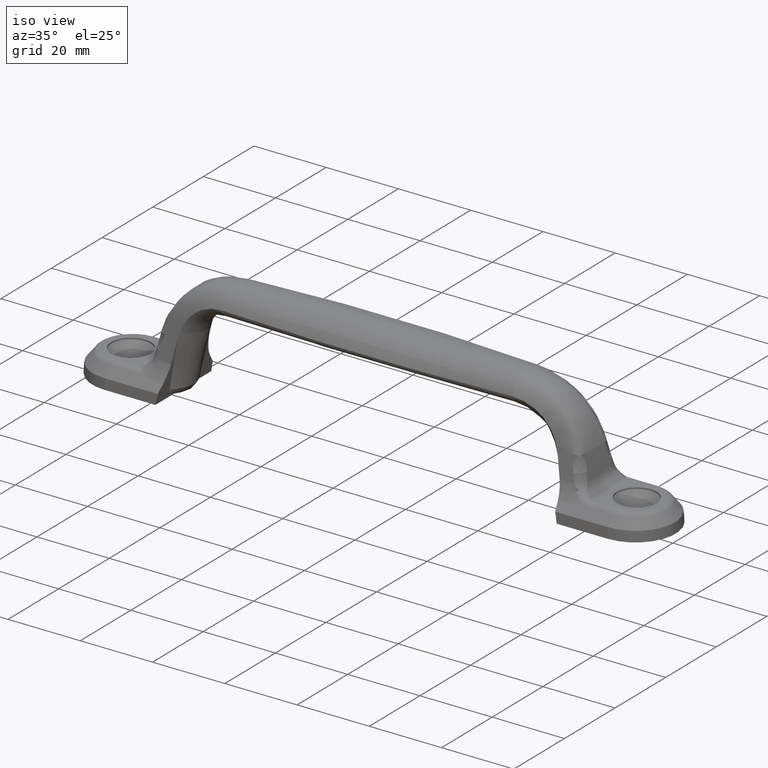
[diagram: clean part render]
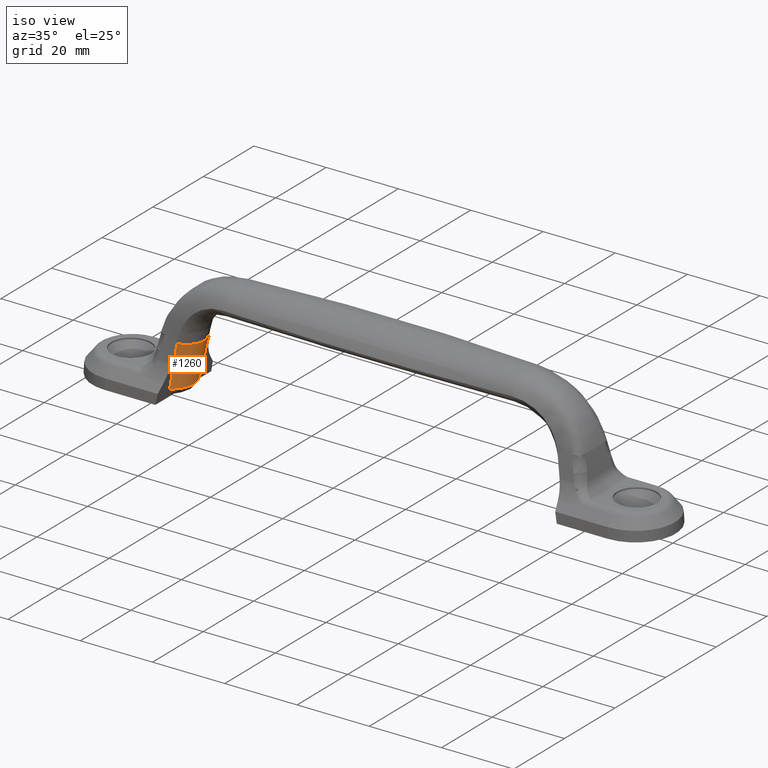
[diagram: same view with one face highlighted and labeled with its STEP entity id]
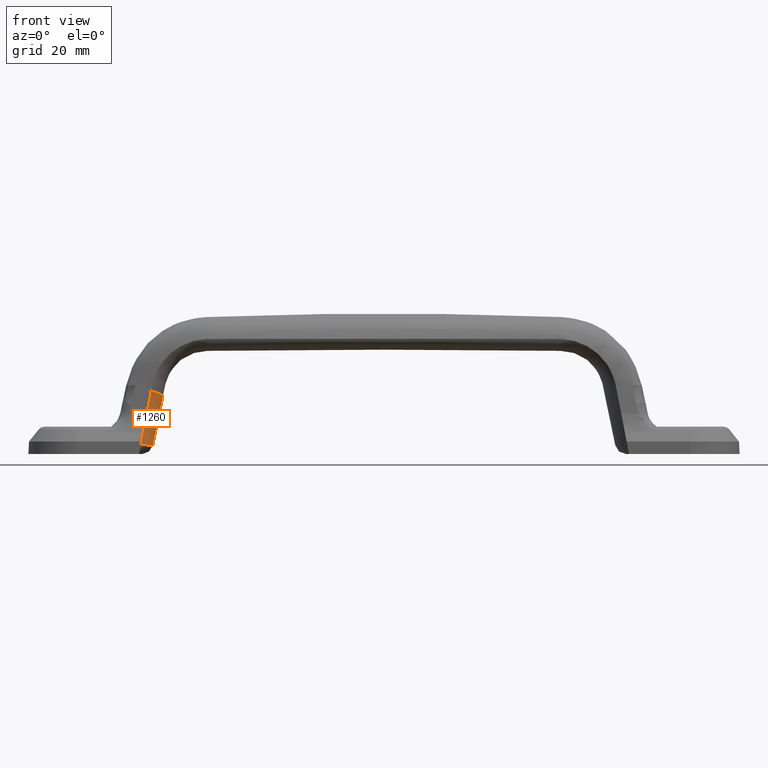
[diagram: same view with one face highlighted and labeled with its STEP entity id]
A machine part, iso view. The second image highlights one B-rep face of the part: STEP entity #1260.
A second angle (front view) of the same face is appended — the face is thin or edge-on in the first view.
In plain terms, the highlighted face is a freeform B-spline surface patch.
Its self-contained STEP definition (entity closure, byte-faithful):
#245=FACE_OUTER_BOUND('',#327,.T.);
#327=EDGE_LOOP('',(#1151,#1152,#1153,#1154));
#452=B_SPLINE_CURVE_WITH_KNOTS('',3,(#5876,#5877,#5878,#5879,#5880,#5881,
#5882,#5883,#5884,#5885,#5886,#5887,#5888,#5889,#5890,#5891,#5892,#5893,
#5894,#5895,#5896,#5897,#5898,#5899,#5900,#5901,#5902,#5903,#5904,#5905,
#5906),.UNSPECIFIED.,.F.,.F.,(4,3,3,3,3,3,3,3,3,3,4),(2.62266814435464E-6,
0.11945780196489,0.216644476213972,0.246491850341777,0.249999999999999,
0.50030384069927,0.75,0.75411499826633,0.880879413563301,0.96020206752481,
0.999995028709006),.UNSPECIFIED.);
#454=B_SPLINE_CURVE_WITH_KNOTS('',3,(#5921,#5922,#5923,#5924,#5925,#5926),
 .UNSPECIFIED.,.F.,.F.,(4,2,4),(-1.24160269460315,-0.620802671298082,-1.00000023384172E-6),
 .UNSPECIFIED.);
#458=B_SPLINE_CURVE_WITH_KNOTS('',3,(#6172,#6173,#6174,#6175,#6176,#6177),
 .UNSPECIFIED.,.F.,.F.,(4,2,4),(-1.12552007573961,-0.562893917201807,-1.29556356489617E-5),
 .UNSPECIFIED.);
#459=B_SPLINE_CURVE_WITH_KNOTS('',3,(#6230,#6231,#6232,#6233,#6234),
 .UNSPECIFIED.,.F.,.F.,(4,1,4),(0.,0.5,1.),.UNSPECIFIED.);
#583=VERTEX_POINT('',#5862);
#584=VERTEX_POINT('',#5875);
#585=VERTEX_POINT('',#5920);
#586=VERTEX_POINT('',#6165);
#771=EDGE_CURVE('',#583,#584,#452,.T.);
#773=EDGE_CURVE('',#584,#585,#454,.T.);
#777=EDGE_CURVE('',#586,#583,#458,.T.);
#778=EDGE_CURVE('',#585,#586,#459,.T.);
#1151=ORIENTED_EDGE('',*,*,#773,.F.);
#1152=ORIENTED_EDGE('',*,*,#771,.F.);
#1153=ORIENTED_EDGE('',*,*,#777,.F.);
#1154=ORIENTED_EDGE('',*,*,#778,.F.);
#1188=B_SPLINE_SURFACE_WITH_KNOTS('',3,3,((#6178,#6179,#6180,#6181),(#6182,
#6183,#6184,#6185),(#6186,#6187,#6188,#6189),(#6190,#6191,#6192,#6193),
(#6194,#6195,#6196,#6197),(#6198,#6199,#6200,#6201),(#6202,#6203,#6204,
#6205),(#6206,#6207,#6208,#6209),(#6210,#6211,#6212,#6213),(#6214,#6215,
#6216,#6217),(#6218,#6219,#6220,#6221),(#6222,#6223,#6224,#6225),(#6226,
#6227,#6228,#6229)),.UNSPECIFIED.,.F.,.F.,.F.,(4,3,3,3,4),(4,4),(0.,0.25,
0.5,0.75,1.),(0.,1.),.UNSPECIFIED.);
#1260=ADVANCED_FACE('',(#245),#1188,.F.);
#5862=CARTESIAN_POINT('',(-55.1706137989036,65.3250478548609,2.02591888439117));
#5875=CARTESIAN_POINT('',(-55.1516915961365,54.109321985225,2.12351919769397));
#5876=CARTESIAN_POINT('Ctrl Pts',(-55.1706137989036,65.3250478548609,2.02591888439117));
#5877=CARTESIAN_POINT('Ctrl Pts',(-54.7652833631099,65.0126346804492,2.03048962312275));
#5878=CARTESIAN_POINT('Ctrl Pts',(-54.3955636368107,64.6518602681521,2.00872535366747));
#5879=CARTESIAN_POINT('Ctrl Pts',(-54.0678916785993,64.2584942245244,2.00349298984566));
#5880=CARTESIAN_POINT('Ctrl Pts',(-53.801303423065,63.9384583937822,1.99923602885581));
#5881=CARTESIAN_POINT('Ctrl Pts',(-53.5602322523293,63.5907796368042,1.99551834359964));
#5882=CARTESIAN_POINT('Ctrl Pts',(-53.3530602917506,63.2274449261172,1.99201355153377));
#5883=CARTESIAN_POINT('Ctrl Pts',(-53.2894349124076,63.1158598026702,1.99093718133344));
#5884=CARTESIAN_POINT('Ctrl Pts',(-53.2288481853877,63.0024759846825,1.98975161972222));
#5885=CARTESIAN_POINT('Ctrl Pts',(-53.1714894433164,62.8877022994927,1.98901517914228));
#5886=CARTESIAN_POINT('Ctrl Pts',(-53.1647477095032,62.8742122262036,1.98892862064779));
#5887=CARTESIAN_POINT('Ctrl Pts',(-53.1580470272484,62.8606976101204,1.98884821982187));
#5888=CARTESIAN_POINT('Ctrl Pts',(-53.1513874009337,62.8471588954926,1.98877486654075));
#5889=CARTESIAN_POINT('Ctrl Pts',(-52.6762280700632,61.8811817851635,1.98354116507905));
#5890=CARTESIAN_POINT('Ctrl Pts',(-52.420355438966,60.7998026393215,1.98543563196814));
#5891=CARTESIAN_POINT('Ctrl Pts',(-52.4199807184595,59.7158847120065,1.99340645236118));
#5892=CARTESIAN_POINT('Ctrl Pts',(-52.4196069076901,58.6345982935015,2.001357921396));
#5893=CARTESIAN_POINT('Ctrl Pts',(-52.6573837182873,57.5799408807866,2.01615202390885));
#5894=CARTESIAN_POINT('Ctrl Pts',(-53.1308625080782,56.6040043663625,2.03844961343741));
#5895=CARTESIAN_POINT('Ctrl Pts',(-53.1386654490789,56.5879209108695,2.03881707820944));
#5896=CARTESIAN_POINT('Ctrl Pts',(-53.1465328292402,56.5718574710515,2.03918774910852));
#5897=CARTESIAN_POINT('Ctrl Pts',(-53.1544646453721,56.555814358523,2.03956158066464));
#5898=CARTESIAN_POINT('Ctrl Pts',(-53.3988078914991,56.0615988941164,2.05107763378655));
#5899=CARTESIAN_POINT('Ctrl Pts',(-53.7023228355776,55.5968857153136,2.064749032245));
#5900=CARTESIAN_POINT('Ctrl Pts',(-54.0502091300361,55.1772018086351,2.07928169157079));
#5901=CARTESIAN_POINT('Ctrl Pts',(-54.2678984877998,54.9145851963572,2.08837548263306));
#5902=CARTESIAN_POINT('Ctrl Pts',(-54.5054059646247,54.6658430041826,2.10720920534373));
#5903=CARTESIAN_POINT('Ctrl Pts',(-54.7584611957304,54.4374746856002,2.11776483237172));
#5904=CARTESIAN_POINT('Ctrl Pts',(-54.8854087508858,54.322911554096,2.12306016271711));
#5905=CARTESIAN_POINT('Ctrl Pts',(-55.0166845601767,54.2135037245499,2.1242018680104));
#5906=CARTESIAN_POINT('Ctrl Pts',(-55.1516915961365,54.109321985225,2.12351919769397));
#5920=CARTESIAN_POINT('',(-52.7840648282602,53.58900584543,14.3033711266491));
#5921=CARTESIAN_POINT('Ctrl Pts',(-55.1515953815052,54.1090935240103,2.12348230710723));
#5922=CARTESIAN_POINT('Ctrl Pts',(-54.757082379078,54.0223628911306,4.15307575809649));
#5923=CARTESIAN_POINT('Ctrl Pts',(-54.3623378892318,53.9356153741584,6.1838601086167));
#5924=CARTESIAN_POINT('Ctrl Pts',(-53.5733228200672,53.7622893015527,10.2429907513488));
#5925=CARTESIAN_POINT('Ctrl Pts',(-53.1785674074537,53.6756042414901,12.2738312946357));
#5926=CARTESIAN_POINT('Ctrl Pts',(-52.7840648265205,53.5890058458868,14.303371131686));
#6165=CARTESIAN_POINT('',(-53.0387464776372,66.3566018509513,12.9931474414941));
#6172=CARTESIAN_POINT('Ctrl Pts',(-53.0387465068693,66.3566016057066,12.9931474702541));
#6173=CARTESIAN_POINT('Ctrl Pts',(-53.3948809950668,66.1841937719891,11.1609943587723));
#6174=CARTESIAN_POINT('Ctrl Pts',(-53.7485262499567,66.0130368755353,9.34164724249953));
#6175=CARTESIAN_POINT('Ctrl Pts',(-54.460940728831,65.6683480274862,5.67659247417115));
#6176=CARTESIAN_POINT('Ctrl Pts',(-54.814069298049,65.4975452134677,3.85990347524664));
#6177=CARTESIAN_POINT('Ctrl Pts',(-55.170564509419,65.3251664050892,2.02589460391888));
#6178=CARTESIAN_POINT('Ctrl Pts',(-55.2615056735697,65.3593249943155,1.88103612371522));
#6179=CARTESIAN_POINT('Ctrl Pts',(-54.4537138798469,65.7553986723601,6.04797961788692));
#6180=CARTESIAN_POINT('Ctrl Pts',(-53.64538815246,66.1511930600693,10.2148457363134));
#6181=CARTESIAN_POINT('Ctrl Pts',(-52.8367814227672,66.5467975041821,14.3816751979382));
#6182=CARTESIAN_POINT('Ctrl Pts',(-54.4183718663398,64.7278430172971,1.89180254863609));
#6183=CARTESIAN_POINT('Ctrl Pts',(-53.5696398008107,65.054993201399,6.05348851613129));
#6184=CARTESIAN_POINT('Ctrl Pts',(-52.72040911822,65.3817831773226,10.2151016729806));
#6185=CARTESIAN_POINT('Ctrl Pts',(-51.8709214550389,65.7083390158323,14.3766810751316));
#6186=CARTESIAN_POINT('Ctrl Pts',(-53.7177920475801,63.9049757648643,1.90067451582587));
#6187=CARTESIAN_POINT('Ctrl Pts',(-52.8443108833257,64.1535051701344,6.0580115064821));
#6188=CARTESIAN_POINT('Ctrl Pts',(-51.9704431724877,64.4016404934173,10.2152902415727));
#6189=CARTESIAN_POINT('Ctrl Pts',(-51.0963762418749,64.6495271705515,14.3725417398244));
#6190=CARTESIAN_POINT('Ctrl Pts',(-53.2280274438367,62.9611445421914,1.90688614673921));
#6191=CARTESIAN_POINT('Ctrl Pts',(-52.3487619973267,63.1378010869645,6.06122561953011));
#6192=CARTESIAN_POINT('Ctrl Pts',(-51.4691996793745,63.3140698835316,10.2155184415955));
#6193=CARTESIAN_POINT('Ctrl Pts',(-50.5894835207619,63.4900882407128,14.3697891661043));
#6194=CARTESIAN_POINT('Ctrl Pts',(-52.7382628400932,62.0173133195186,1.91309777765255));
#6195=CARTESIAN_POINT('Ctrl Pts',(-51.8532131113277,62.1220970037945,6.06443973257812));
#6196=CARTESIAN_POINT('Ctrl Pts',(-50.9679561862613,62.2264992736459,10.2157466416183));
#6197=CARTESIAN_POINT('Ctrl Pts',(-50.0825907996488,62.330649310874,14.3670365923841));
#6198=CARTESIAN_POINT('Ctrl Pts',(-52.4589052609853,60.9517245037563,1.9165859048227));
#6199=CARTESIAN_POINT('Ctrl Pts',(-51.586835384789,60.9909750579728,6.066259376013));
#6200=CARTESIAN_POINT('Ctrl Pts',(-50.7146743418287,61.0299300954697,10.2159154079571));
#6201=CARTESIAN_POINT('Ctrl Pts',(-49.8424660400253,61.0686821836688,14.3655627260814));
#6202=CARTESIAN_POINT('Ctrl Pts',(-52.4371464345422,59.8611009762548,1.91668298512542));
#6203=CARTESIAN_POINT('Ctrl Pts',(-51.581065581269,59.8541509754234,6.0662658628911));
#6204=CARTESIAN_POINT('Ctrl Pts',(-50.7249468078916,59.8470078682743,10.2158405197452));
#6205=CARTESIAN_POINT('Ctrl Pts',(-49.868809778332,59.839726219644,14.3654111249292));
#6206=CARTESIAN_POINT('Ctrl Pts',(-52.4153876080991,58.7704774487532,1.91678006542815));
#6207=CARTESIAN_POINT('Ctrl Pts',(-51.575295777749,58.7173268928739,6.06627234976919));
#6208=CARTESIAN_POINT('Ctrl Pts',(-50.7352192739545,58.6640856410789,10.2157656315333));
#6209=CARTESIAN_POINT('Ctrl Pts',(-49.8951535166385,58.6107702556192,14.3652595237771));
#6210=CARTESIAN_POINT('Ctrl Pts',(-52.6513375024404,57.6531262722842,1.91342452240227));
#6211=CARTESIAN_POINT('Ctrl Pts',(-51.8301554247146,57.573293939226,6.06439531740608));
#6212=CARTESIAN_POINT('Ctrl Pts',(-51.0089960944028,57.4934257357734,10.215369597898));
#6213=CARTESIAN_POINT('Ctrl Pts',(-50.1878552254848,57.4135273177738,14.3663466786401));
#6214=CARTESIAN_POINT('Ctrl Pts',(-53.1372881120221,56.6471925953644,1.90656251769922));
#6215=CARTESIAN_POINT('Ctrl Pts',(-52.3250319097171,56.5432873012095,6.0605333647049));
#6216=CARTESIAN_POINT('Ctrl Pts',(-51.5127705983038,56.4393919720509,10.2145034614877));
#6217=CARTESIAN_POINT('Ctrl Pts',(-50.7005051257708,56.3355048972472,14.3684729507061));
#6218=CARTESIAN_POINT('Ctrl Pts',(-53.6232387216039,55.6412589184446,1.89970051299617));
#6219=CARTESIAN_POINT('Ctrl Pts',(-52.8199083947197,55.5132806631931,6.05667141200373));
#6220=CARTESIAN_POINT('Ctrl Pts',(-52.0165451022048,55.3853582083285,10.2136373250774));
#6221=CARTESIAN_POINT('Ctrl Pts',(-51.2131550260569,55.2574824767207,14.3705992227722));
#6222=CARTESIAN_POINT('Ctrl Pts',(-54.3602457571984,54.7445049393643,1.88947581688701));
#6223=CARTESIAN_POINT('Ctrl Pts',(-53.5555617396796,54.5956824951047,6.05092582794055));
#6224=CARTESIAN_POINT('Ctrl Pts',(-52.7508013463966,54.4469138177287,10.2123634515735));
#6225=CARTESIAN_POINT('Ctrl Pts',(-51.9459807970763,54.298193552241,14.3737914398121));
#6226=CARTESIAN_POINT('Ctrl Pts',(-55.2631877649797,54.0714326881825,1.87686375649277));
#6227=CARTESIAN_POINT('Ctrl Pts',(-54.4552944926937,53.8893164806872,6.04386713351013));
#6228=CARTESIAN_POINT('Ctrl Pts',(-53.6472506990294,53.7071984550287,10.2108411735525));
#6229=CARTESIAN_POINT('Ctrl Pts',(-52.8390707119928,53.5250986541622,14.3777895301469));
#6230=CARTESIAN_POINT('Ctrl Pts',(-52.7840648298105,53.5890058452823,14.3033711209508));
#6231=CARTESIAN_POINT('Ctrl Pts',(-51.0750975364693,55.2068121852525,13.7964780706934));
#6232=CARTESIAN_POINT('Ctrl Pts',(-49.0808871996011,59.9713742311149,12.903541419675));
#6233=CARTESIAN_POINT('Ctrl Pts',(-51.2549915692344,64.7499581953317,12.8150626310161));
#6234=CARTESIAN_POINT('Ctrl Pts',(-53.0387464112353,66.3566019268666,12.993147421705));